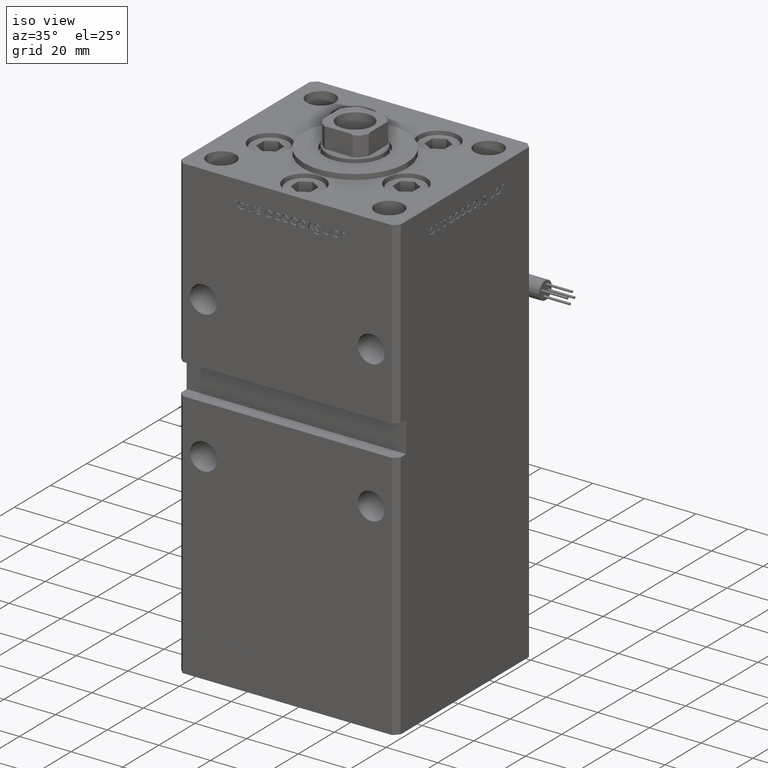
[diagram: clean part render]
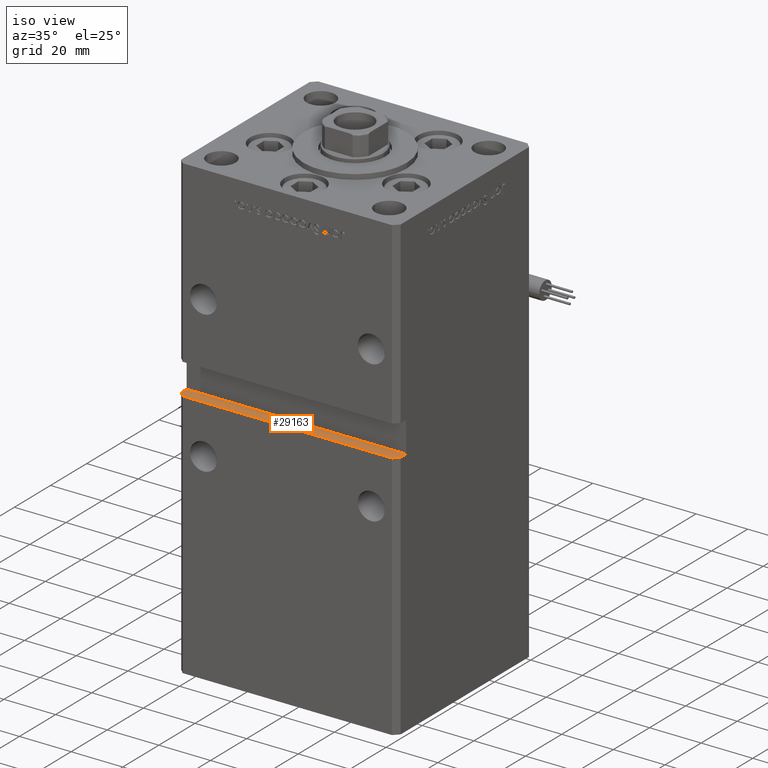
[diagram: same view with one face highlighted and labeled with its STEP entity id]
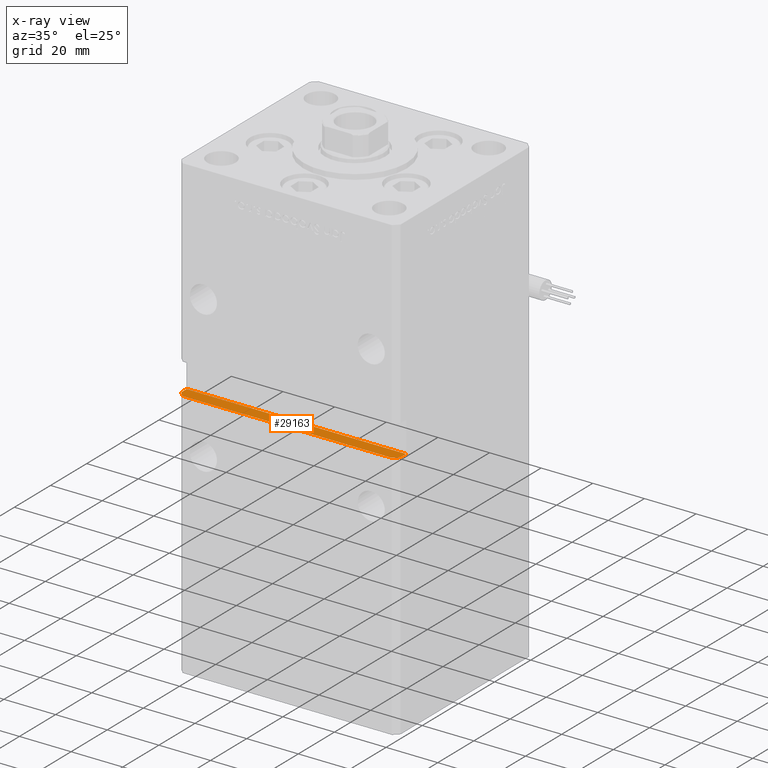
[diagram: x-ray of the same camera — body ghosted, the highlighted face saturated]
A machine part, iso view. The second image highlights one B-rep face of the part: STEP entity #29163.
The next image is the same camera in x-ray: the body ghosted, the highlighted face saturated — about 0% of this face is hidden behind the body in this view.
In plain terms, the highlighted planar face has unit normal (0, 0, -1).
Its self-contained STEP definition (entity closure, byte-faithful):
#1110 = EDGE_CURVE ( 'NONE', #19985, #15082, #52814, .T. ) ;
#1425 = DIRECTION ( 'NONE',  ( -0.000000000000000000, -1.000000000000000000, -0.000000000000000000 ) ) ;
#1561 = CARTESIAN_POINT ( 'NONE',  ( -42.49999999999998579, -35.49999999999996447, 82.00000000000000000 ) ) ;
#5240 = ORIENTED_EDGE ( 'NONE', *, *, #9896, .F. ) ;
#6197 = CARTESIAN_POINT ( 'NONE',  ( 42.49999999999998579, -32.50000000000000000, 82.00000000000000000 ) ) ;
#7652 = CARTESIAN_POINT ( 'NONE',  ( -42.49999999999998579, -37.50000000000000711, 82.00000000000000000 ) ) ;
#9468 = CARTESIAN_POINT ( 'NONE',  ( -42.49999999999998579, -35.50000000000000711, 82.00000000000000000 ) ) ;
#9470 = DIRECTION ( 'NONE',  ( 1.000000000000000000, 0.000000000000000000, 0.000000000000000000 ) ) ;
#9896 = EDGE_CURVE ( 'NONE', #19985, #43296, #44337, .T. ) ;
#10376 = LINE ( 'NONE', #49523, #38411 ) ;
#13820 = CARTESIAN_POINT ( 'NONE',  ( -42.49999999999998579, -32.50000000000000711, 82.00000000000000000 ) ) ;
#14230 = VECTOR ( 'NONE', #9470, 1000.000000000000000 ) ;
#15065 = LINE ( 'NONE', #49375, #18636 ) ;
#15082 = VERTEX_POINT ( 'NONE', #1561 ) ;
#17701 = CARTESIAN_POINT ( 'NONE',  ( -42.49999999999998579, -32.50000000000000711, 82.00000000000000000 ) ) ;
#17989 = LINE ( 'NONE', #9468, #37653 ) ;
#18636 = VECTOR ( 'NONE', #1425, 1000.000000000000000 ) ;
#19750 = DIRECTION ( 'NONE',  ( 0.7071067811865474617, 0.7071067811865474617, 0.000000000000000000 ) ) ;
#19985 = VERTEX_POINT ( 'NONE', #41602 ) ;
#20111 = ORIENTED_EDGE ( 'NONE', *, *, #39262, .F. ) ;
#23445 = ORIENTED_EDGE ( 'NONE', *, *, #39536, .F. ) ;
#23716 = FACE_OUTER_BOUND ( 'NONE', #47719, .T. ) ;
#24852 = ORIENTED_EDGE ( 'NONE', *, *, #55848, .T. ) ;
#26161 = ORIENTED_EDGE ( 'NONE', *, *, #1110, .T. ) ;
#26775 = DIRECTION ( 'NONE',  ( -0.7071067811865474617, 0.7071067811865474617, 0.000000000000000000 ) ) ;
#29163 = ADVANCED_FACE ( 'NONE', ( #23716 ), #36754, .F. ) ;
#30749 = VECTOR ( 'NONE', #51062, 1000.000000000000000 ) ;
#31096 = DIRECTION ( 'NONE',  ( 0.000000000000000000, 0.000000000000000000, -1.000000000000000000 ) ) ;
#31228 = DIRECTION ( 'NONE',  ( -0.000000000000000000, -1.000000000000000000, -0.000000000000000000 ) ) ;
#33809 = AXIS2_PLACEMENT_3D ( 'NONE', #13820, #31096, #48407 ) ;
#36004 = EDGE_CURVE ( 'NONE', #51314, #55084, #10376, .T. ) ;
#36754 = PLANE ( 'NONE',  #33809 ) ;
#37653 = VECTOR ( 'NONE', #26775, 1000.000000000000114 ) ;
#38411 = VECTOR ( 'NONE', #19750, 1000.000000000000114 ) ;
#39262 = EDGE_CURVE ( 'NONE', #52979, #15082, #17989, .T. ) ;
#39396 = CARTESIAN_POINT ( 'NONE',  ( 40.49999999999998579, -37.50000000000000711, 82.00000000000000000 ) ) ;
#39456 = ORIENTED_EDGE ( 'NONE', *, *, #36004, .T. ) ;
#39536 = EDGE_CURVE ( 'NONE', #43296, #55084, #15065, .T. ) ;
#41418 = LINE ( 'NONE', #7652, #30749 ) ;
#41602 = CARTESIAN_POINT ( 'NONE',  ( -42.49999999999998579, -32.50000000000000711, 82.00000000000000000 ) ) ;
#43296 = VERTEX_POINT ( 'NONE', #6197 ) ;
#44337 = LINE ( 'NONE', #17701, #14230 ) ;
#45724 = VECTOR ( 'NONE', #31228, 1000.000000000000000 ) ;
#46790 = CARTESIAN_POINT ( 'NONE',  ( 42.49999999999998579, -35.50000000000000711, 82.00000000000000000 ) ) ;
#47719 = EDGE_LOOP ( 'NONE', ( #24852, #39456, #23445, #5240, #26161, #20111 ) ) ;
#48407 = DIRECTION ( 'NONE',  ( -1.000000000000000000, 0.000000000000000000, -0.000000000000000000 ) ) ;
#49375 = CARTESIAN_POINT ( 'NONE',  ( 42.49999999999998579, -32.50000000000000711, 82.00000000000000000 ) ) ;
#49523 = CARTESIAN_POINT ( 'NONE',  ( 42.49999999999998579, -35.50000000000000711, 82.00000000000000000 ) ) ;
#49984 = CARTESIAN_POINT ( 'NONE',  ( -40.49999999999998579, -37.50000000000000711, 82.00000000000000000 ) ) ;
#51062 = DIRECTION ( 'NONE',  ( 1.000000000000000000, 0.000000000000000000, 0.000000000000000000 ) ) ;
#51314 = VERTEX_POINT ( 'NONE', #39396 ) ;
#52814 = LINE ( 'NONE', #53664, #45724 ) ;
#52979 = VERTEX_POINT ( 'NONE', #49984 ) ;
#53664 = CARTESIAN_POINT ( 'NONE',  ( -42.49999999999998579, -32.50000000000000711, 82.00000000000000000 ) ) ;
#55084 = VERTEX_POINT ( 'NONE', #46790 ) ;
#55848 = EDGE_CURVE ( 'NONE', #52979, #51314, #41418, .T. ) ;